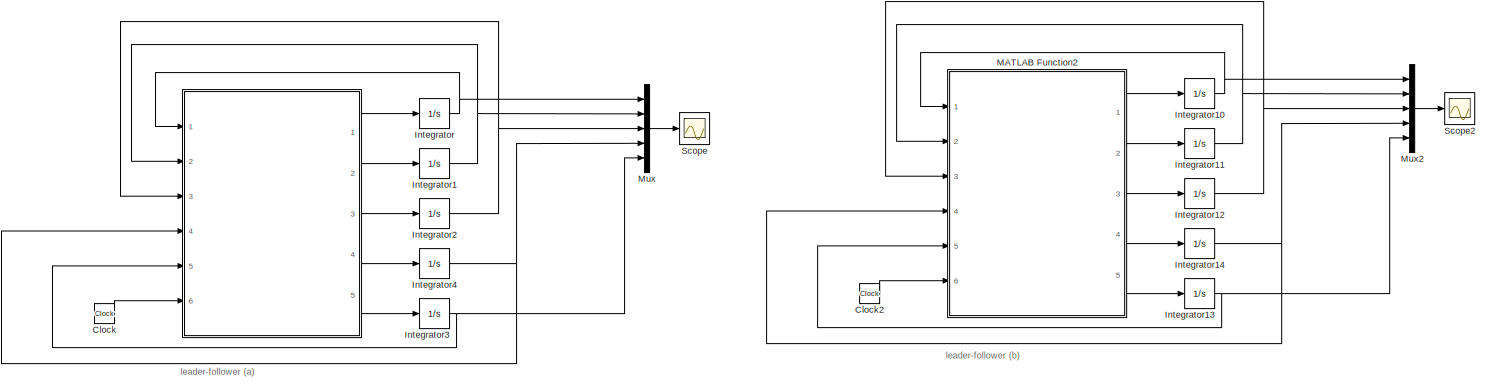
[diagram: root canvas - part 1/2, full width, top band]
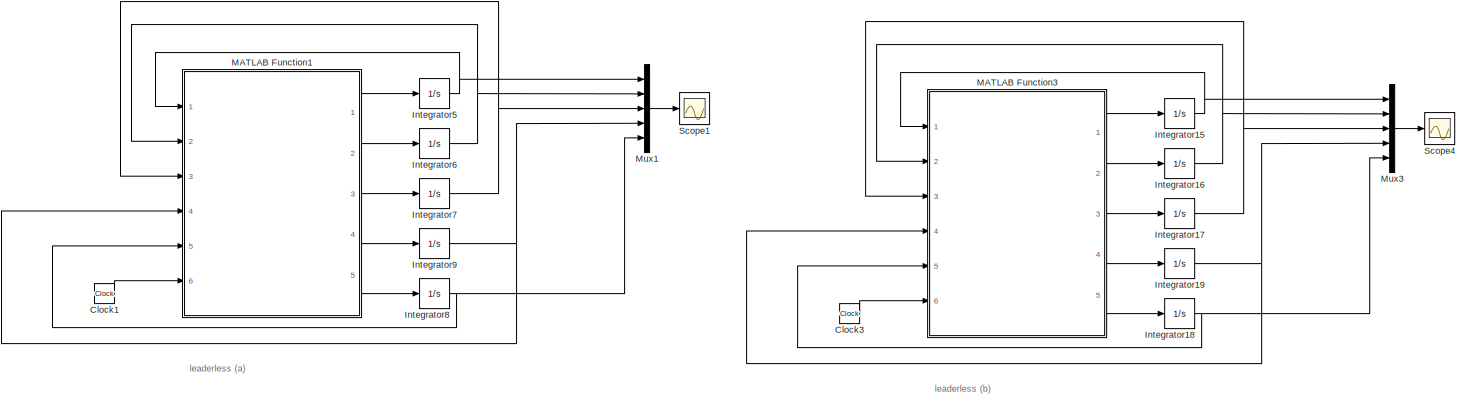
[diagram: root canvas - part 2/2, full width, bottom band]
MODEL slx_25a331f3f486
KIND model
CONFIG AbsTol = auto
CONFIG EnableMultiTasking = off
CONFIG FixedStep = auto
CONFIG MaxStep = auto
CONFIG MinStep = auto
CONFIG RelTol = 1e-3
CONFIG SampleTimeConstraint = Unconstrained
CONFIG Solver = VariableStepAuto
CONFIG SolverName = VariableStepAuto
CONFIG StartTime = 0.0
CONFIG StopTime = 20
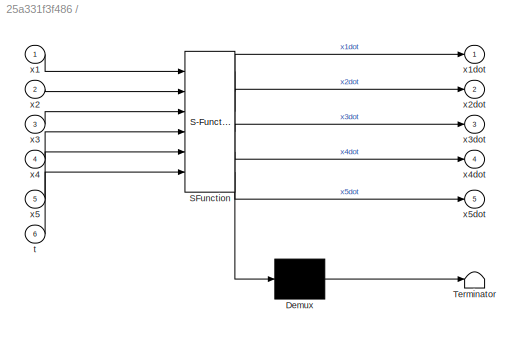
BLOCK [SubSystem]  
  ErrorFcn = Stateflow.Translate.translate
  PermitHierarchicalResolution = ExplicitOnly
  Ports = [6, 5]
  RequestExecContextInheritance = off
  SFBlockType = MATLAB Function
  TreatAsAtomicUnit = on
BLOCK [Demux]  / Demux 
  Outputs = 1
  Ports = [1, 1]
BLOCK [S-Function]  / SFunction 
  EnableBusSupport = on
  FunctionName = sf_sfun
  PortCounts = [6 6]
  Ports = [6, 6]
  SFcnIsStateOwnerBlock = off
  SFunctionDeploymentMode = off
  Tag = Stateflow S-Function 2
BLOCK [Terminator]  / Terminator 
BLOCK [Inport]  /t
  IconDisplay = Port number
  Port = 6
BLOCK [Inport]  /x1
  IconDisplay = Port number
BLOCK [Outport]  /x1dot
  IconDisplay = Port number
BLOCK [Inport]  /x2
  IconDisplay = Port number
  Port = 2
BLOCK [Outport]  /x2dot
  IconDisplay = Port number
  Port = 2
BLOCK [Inport]  /x3
  IconDisplay = Port number
  Port = 3
BLOCK [Outport]  /x3dot
  IconDisplay = Port number
  Port = 3
BLOCK [Inport]  /x4
  IconDisplay = Port number
  Port = 4
BLOCK [Outport]  /x4dot
  IconDisplay = Port number
  Port = 4
BLOCK [Inport]  /x5
  IconDisplay = Port number
  Port = 5
BLOCK [Outport]  /x5dot
  IconDisplay = Port number
  Port = 5
BLOCK [Clock] Clock
BLOCK [Clock] Clock1
BLOCK [Clock] Clock2
BLOCK [Clock] Clock3
BLOCK [Integrator] Integrator
  InitialCondition = x1_0
  Ports = [1, 1]
BLOCK [Integrator] Integrator1
  InitialCondition = x2_0
  Ports = [1, 1]
BLOCK [Integrator] Integrator10
  InitialCondition = x1_0
  Ports = [1, 1]
BLOCK [Integrator] Integrator11
  InitialCondition = x2_0
  Ports = [1, 1]
BLOCK [Integrator] Integrator12
  InitialCondition = x3_0
  Ports = [1, 1]
BLOCK [Integrator] Integrator13
  InitialCondition = x5_0
  Ports = [1, 1]
BLOCK [Integrator] Integrator14
  InitialCondition = x4_0
  Ports = [1, 1]
BLOCK [Integrator] Integrator15
  InitialCondition = x1_0
  Ports = [1, 1]
BLOCK [Integrator] Integrator16
  InitialCondition = x2_0
  Ports = [1, 1]
BLOCK [Integrator] Integrator17
  InitialCondition = x3_0
  Ports = [1, 1]
BLOCK [Integrator] Integrator18
  InitialCondition = x5_0
  Ports = [1, 1]
BLOCK [Integrator] Integrator19
  InitialCondition = x4_0
  Ports = [1, 1]
BLOCK [Integrator] Integrator2
  InitialCondition = x3_0
  Ports = [1, 1]
BLOCK [Integrator] Integrator3
  InitialCondition = x5_0
  Ports = [1, 1]
BLOCK [Integrator] Integrator4
  InitialCondition = x4_0
  Ports = [1, 1]
BLOCK [Integrator] Integrator5
  InitialCondition = x1_0
  Ports = [1, 1]
BLOCK [Integrator] Integrator6
  InitialCondition = x2_0
  Ports = [1, 1]
BLOCK [Integrator] Integrator7
  InitialCondition = x3_0
  Ports = [1, 1]
BLOCK [Integrator] Integrator8
  InitialCondition = x5_0
  Ports = [1, 1]
BLOCK [Integrator] Integrator9
  InitialCondition = x4_0
  Ports = [1, 1]
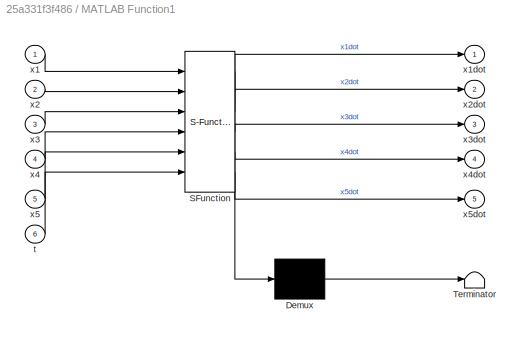
BLOCK [SubSystem] MATLAB Function1
  ErrorFcn = Stateflow.Translate.translate
  PermitHierarchicalResolution = ExplicitOnly
  Ports = [6, 5]
  RequestExecContextInheritance = off
  SFBlockType = MATLAB Function
  TreatAsAtomicUnit = on
BLOCK [Demux] MATLAB Function1/ Demux 
  Outputs = 1
  Ports = [1, 1]
BLOCK [S-Function] MATLAB Function1/ SFunction 
  EnableBusSupport = on
  FunctionName = sf_sfun
  PortCounts = [6 6]
  Ports = [6, 6]
  SFcnIsStateOwnerBlock = off
  SFunctionDeploymentMode = off
  Tag = Stateflow S-Function 1
BLOCK [Terminator] MATLAB Function1/ Terminator 
BLOCK [Inport] MATLAB Function1/t
  IconDisplay = Port number
  Port = 6
BLOCK [Inport] MATLAB Function1/x1
  IconDisplay = Port number
BLOCK [Outport] MATLAB Function1/x1dot
  IconDisplay = Port number
BLOCK [Inport] MATLAB Function1/x2
  IconDisplay = Port number
  Port = 2
BLOCK [Outport] MATLAB Function1/x2dot
  IconDisplay = Port number
  Port = 2
BLOCK [Inport] MATLAB Function1/x3
  IconDisplay = Port number
  Port = 3
BLOCK [Outport] MATLAB Function1/x3dot
  IconDisplay = Port number
  Port = 3
BLOCK [Inport] MATLAB Function1/x4
  IconDisplay = Port number
  Port = 4
BLOCK [Outport] MATLAB Function1/x4dot
  IconDisplay = Port number
  Port = 4
BLOCK [Inport] MATLAB Function1/x5
  IconDisplay = Port number
  Port = 5
BLOCK [Outport] MATLAB Function1/x5dot
  IconDisplay = Port number
  Port = 5
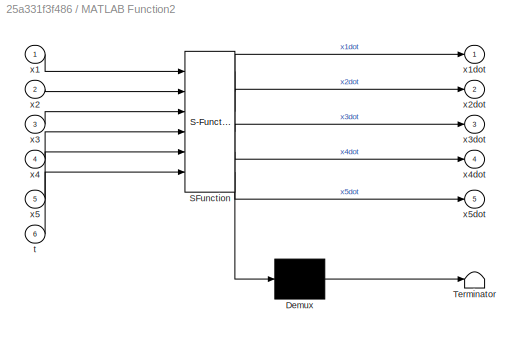
BLOCK [SubSystem] MATLAB Function2
  ErrorFcn = Stateflow.Translate.translate
  PermitHierarchicalResolution = ExplicitOnly
  Ports = [6, 5]
  RequestExecContextInheritance = off
  SFBlockType = MATLAB Function
  TreatAsAtomicUnit = on
BLOCK [Demux] MATLAB Function2/ Demux 
  Outputs = 1
  Ports = [1, 1]
BLOCK [S-Function] MATLAB Function2/ SFunction 
  EnableBusSupport = on
  FunctionName = sf_sfun
  PortCounts = [6 6]
  Ports = [6, 6]
  SFcnIsStateOwnerBlock = off
  SFunctionDeploymentMode = off
  Tag = Stateflow S-Function 3
BLOCK [Terminator] MATLAB Function2/ Terminator 
BLOCK [Inport] MATLAB Function2/t
  IconDisplay = Port number
  Port = 6
BLOCK [Inport] MATLAB Function2/x1
  IconDisplay = Port number
BLOCK [Outport] MATLAB Function2/x1dot
  IconDisplay = Port number
BLOCK [Inport] MATLAB Function2/x2
  IconDisplay = Port number
  Port = 2
BLOCK [Outport] MATLAB Function2/x2dot
  IconDisplay = Port number
  Port = 2
BLOCK [Inport] MATLAB Function2/x3
  IconDisplay = Port number
  Port = 3
BLOCK [Outport] MATLAB Function2/x3dot
  IconDisplay = Port number
  Port = 3
BLOCK [Inport] MATLAB Function2/x4
  IconDisplay = Port number
  Port = 4
BLOCK [Outport] MATLAB Function2/x4dot
  IconDisplay = Port number
  Port = 4
BLOCK [Inport] MATLAB Function2/x5
  IconDisplay = Port number
  Port = 5
BLOCK [Outport] MATLAB Function2/x5dot
  IconDisplay = Port number
  Port = 5
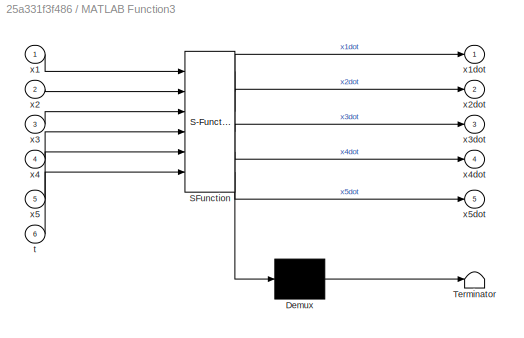
BLOCK [SubSystem] MATLAB Function3
  ErrorFcn = Stateflow.Translate.translate
  PermitHierarchicalResolution = ExplicitOnly
  Ports = [6, 5]
  RequestExecContextInheritance = off
  SFBlockType = MATLAB Function
  TreatAsAtomicUnit = on
BLOCK [Demux] MATLAB Function3/ Demux 
  Outputs = 1
  Ports = [1, 1]
BLOCK [S-Function] MATLAB Function3/ SFunction 
  EnableBusSupport = on
  FunctionName = sf_sfun
  PortCounts = [6 6]
  Ports = [6, 6]
  SFcnIsStateOwnerBlock = off
  SFunctionDeploymentMode = off
  Tag = Stateflow S-Function 4
BLOCK [Terminator] MATLAB Function3/ Terminator 
BLOCK [Inport] MATLAB Function3/t
  IconDisplay = Port number
  Port = 6
BLOCK [Inport] MATLAB Function3/x1
  IconDisplay = Port number
BLOCK [Outport] MATLAB Function3/x1dot
  IconDisplay = Port number
BLOCK [Inport] MATLAB Function3/x2
  IconDisplay = Port number
  Port = 2
BLOCK [Outport] MATLAB Function3/x2dot
  IconDisplay = Port number
  Port = 2
BLOCK [Inport] MATLAB Function3/x3
  IconDisplay = Port number
  Port = 3
BLOCK [Outport] MATLAB Function3/x3dot
  IconDisplay = Port number
  Port = 3
BLOCK [Inport] MATLAB Function3/x4
  IconDisplay = Port number
  Port = 4
BLOCK [Outport] MATLAB Function3/x4dot
  IconDisplay = Port number
  Port = 4
BLOCK [Inport] MATLAB Function3/x5
  IconDisplay = Port number
  Port = 5
BLOCK [Outport] MATLAB Function3/x5dot
  IconDisplay = Port number
  Port = 5
BLOCK [Mux] Mux
  DisplayOption = bar
  Inputs = 5
  Ports = [5, 1]
BLOCK [Mux] Mux1
  DisplayOption = bar
  Inputs = 5
  Ports = [5, 1]
BLOCK [Mux] Mux2
  DisplayOption = bar
  Inputs = 5
  Ports = [5, 1]
BLOCK [Mux] Mux3
  DisplayOption = bar
  Inputs = 5
  Ports = [5, 1]
BLOCK [Scope] Scope
  Floating = off
  NumInputPorts = 1
  Ports = [1]
  ScopeSpecificationString = Simulink.scopes.TimeScopeBlockCfg('CurrentConfiguration', extmgr.ConfigurationSet(extmgr.Configuration('Core','General UI',true),extmgr.Configuration('Core','Source UI',true),extmgr.Configuration('Sources','WiredSimulink',true,'DataLogging',true,'DataLoggingVariableName','P1a_leader','DataLoggingSaveFormat','Array'),extmgr.Configuration('Visuals','Time Domain',true,'SerializedDisplays',{struct('Mi...<+1476ch>
BLOCK [Scope] Scope1
  Floating = off
  NumInputPorts = 1
  Ports = [1]
  ScopeSpecificationString = Simulink.scopes.TimeScopeBlockCfg('CurrentConfiguration', extmgr.ConfigurationSet(extmgr.Configuration('Core','General UI',true),extmgr.Configuration('Core','Source UI',true),extmgr.Configuration('Sources','WiredSimulink',true,'DataLogging',true,'DataLoggingVariableName','P1a_leaderless','DataLoggingSaveFormat','Array'),extmgr.Configuration('Visuals','Time Domain',true,'SerializedDisplays',{struct...<+1481ch>
BLOCK [Scope] Scope2
  Floating = off
  NumInputPorts = 1
  Ports = [1]
  ScopeSpecificationString = Simulink.scopes.TimeScopeBlockCfg('CurrentConfiguration', extmgr.ConfigurationSet(extmgr.Configuration('Core','General UI',true),extmgr.Configuration('Core','Source UI',true),extmgr.Configuration('Sources','WiredSimulink',true,'DataLogging',true,'DataLoggingVariableName','P1b_leader','DataLoggingSaveFormat','Array'),extmgr.Configuration('Visuals','Time Domain',true,'SerializedDisplays',{struct('Mi...<+1859ch>
BLOCK [Scope] Scope4
  Floating = off
  NumInputPorts = 1
  Ports = [1]
  ScopeSpecificationString = Simulink.scopes.TimeScopeBlockCfg('CurrentConfiguration', extmgr.ConfigurationSet(extmgr.Configuration('Core','General UI',true),extmgr.Configuration('Core','Source UI',true),extmgr.Configuration('Sources','WiredSimulink',true,'DataLogging',true,'DataLoggingVariableName','P1b_leaderless','DataLoggingSaveFormat','Array'),extmgr.Configuration('Visuals','Time Domain',true,'SerializedDisplays',{struct...<+1486ch>
ANNOTATION (root): leader-follower (a)
ANNOTATION (root): leader-follower (b)
ANNOTATION (root): leaderless (a)
ANNOTATION (root): leaderless (b)
LINE  :1 -> Integrator:1
LINE  :2 -> Integrator1:1
LINE  :3 -> Integrator2:1
LINE  :4 -> Integrator4:1
LINE  :5 -> Integrator3:1
LINE Clock1:1 -> MATLAB Function1:6
LINE Clock2:1 -> MATLAB Function2:6
LINE Clock3:1 -> MATLAB Function3:6
LINE Clock:1 ->  :6
NET Integrator10:1 -> MATLAB Function2:1, Mux2:1
NET Integrator11:1 -> MATLAB Function2:2, Mux2:2
NET Integrator12:1 -> MATLAB Function2:3, Mux2:3
NET Integrator13:1 -> MATLAB Function2:5, Mux2:5
NET Integrator14:1 -> MATLAB Function2:4, Mux2:4
NET Integrator15:1 -> MATLAB Function3:1, Mux3:1
NET Integrator16:1 -> MATLAB Function3:2, Mux3:2
NET Integrator17:1 -> MATLAB Function3:3, Mux3:3
NET Integrator18:1 -> MATLAB Function3:5, Mux3:5
NET Integrator19:1 -> MATLAB Function3:4, Mux3:4
NET Integrator1:1 ->  :2, Mux:2
NET Integrator2:1 ->  :3, Mux:3
NET Integrator3:1 ->  :5, Mux:5
NET Integrator4:1 ->  :4, Mux:4
NET Integrator5:1 -> MATLAB Function1:1, Mux1:1
NET Integrator6:1 -> MATLAB Function1:2, Mux1:2
NET Integrator7:1 -> MATLAB Function1:3, Mux1:3
NET Integrator8:1 -> MATLAB Function1:5, Mux1:5
NET Integrator9:1 -> MATLAB Function1:4, Mux1:4
NET Integrator:1 ->  :1, Mux:1
LINE MATLAB Function1:1 -> Integrator5:1
LINE MATLAB Function1:2 -> Integrator6:1
LINE MATLAB Function1:3 -> Integrator7:1
LINE MATLAB Function1:4 -> Integrator9:1
LINE MATLAB Function1:5 -> Integrator8:1
LINE MATLAB Function2:1 -> Integrator10:1
LINE MATLAB Function2:2 -> Integrator11:1
LINE MATLAB Function2:3 -> Integrator12:1
LINE MATLAB Function2:4 -> Integrator14:1
LINE MATLAB Function2:5 -> Integrator13:1
LINE MATLAB Function3:1 -> Integrator15:1
LINE MATLAB Function3:2 -> Integrator16:1
LINE MATLAB Function3:3 -> Integrator17:1
LINE MATLAB Function3:4 -> Integrator19:1
LINE MATLAB Function3:5 -> Integrator18:1
LINE Mux1:1 -> Scope1:1
LINE Mux2:1 -> Scope2:1
LINE Mux3:1 -> Scope4:1
LINE Mux:1 -> Scope:1
note: NET lines group one-source signal fan-out (src -> all destinations, sorted); 1:1 wires keep LINE
CHART MATLAB Function1 states=1 transitions=1
  STATE_LABEL 'eML_blk_kernel()'
  STATE_LABEL 'SCRIPT:\nfunction [x1dot,x2dot,x3dot,x4dot,x5dot] = fcn(x1,x2,x3,x4,x5,t)\nx1dot=x5-x1;\nx2dot=x1-x2;\nx3dot=x2-x3;\nx4dot=x3-x4;\nx5dot=x4-x5;\n'
CHART   states=1 transitions=1
  STATE_LABEL 'eML_blk_kernel()'
  STATE_LABEL 'SCRIPT:\nfunction [x1dot,x2dot,x3dot,x4dot,x5dot] = fcn(x1,x2,x3,x4,x5,t)\nk=10;\nx1dot=0;\nx2dot=k*(x1-x2);\nx3dot=k*(x2-x3);\nx4dot=k*(x3-x4);\nx5dot=k*(x1-x5);\n'
CHART MATLAB Function2 states=1 transitions=1
  STATE_LABEL 'eML_blk_kernel()'
  STATE_LABEL 'SCRIPT:\nfunction [x1dot,x2dot,x3dot,x4dot,x5dot] = fcn(x1,x2,x3,x4,x5,t)\nk=10;\nx1dot=0;\nif t>1\n    x2dot=0;\nelse\n    x2dot=k*(x1-x2);\nend\nx3dot=k*(x2-x3);\nx4dot=k*(x3-x4);\nx5dot=k*(x1-x5);\n'
CHART MATLAB Function3 states=1 transitions=1
  STATE_LABEL 'eML_blk_kernel()'
  STATE_LABEL 'SCRIPT:\nfunction [x1dot,x2dot,x3dot,x4dot,x5dot] = fcn(x1,x2,x3,x4,x5,t)\nx1dot=x5-x1;\nif t>1\n    x2dot=0;\nelse\n    x2dot=x1-x2;\nend\nx3dot=x2-x3;\nx4dot=x3-x4;\nx5dot=x4-x5;\n'
